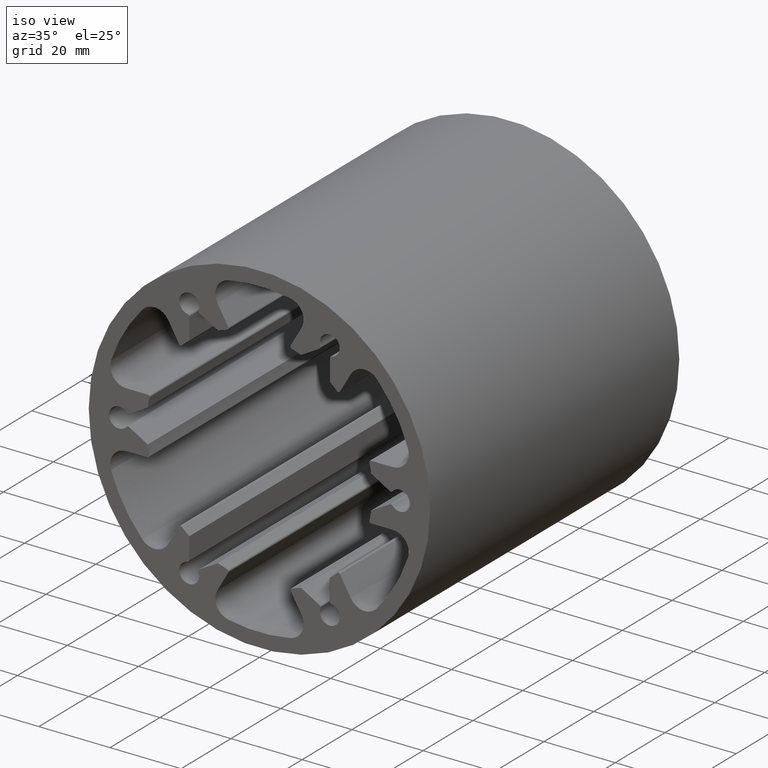
[diagram: clean part render]
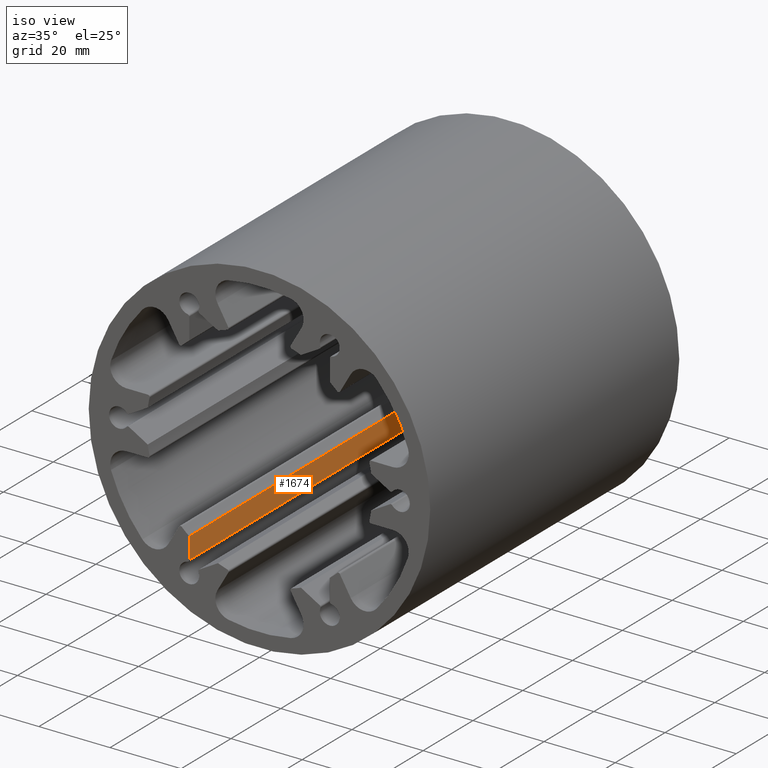
[diagram: same view with one face highlighted and labeled with its STEP entity id]
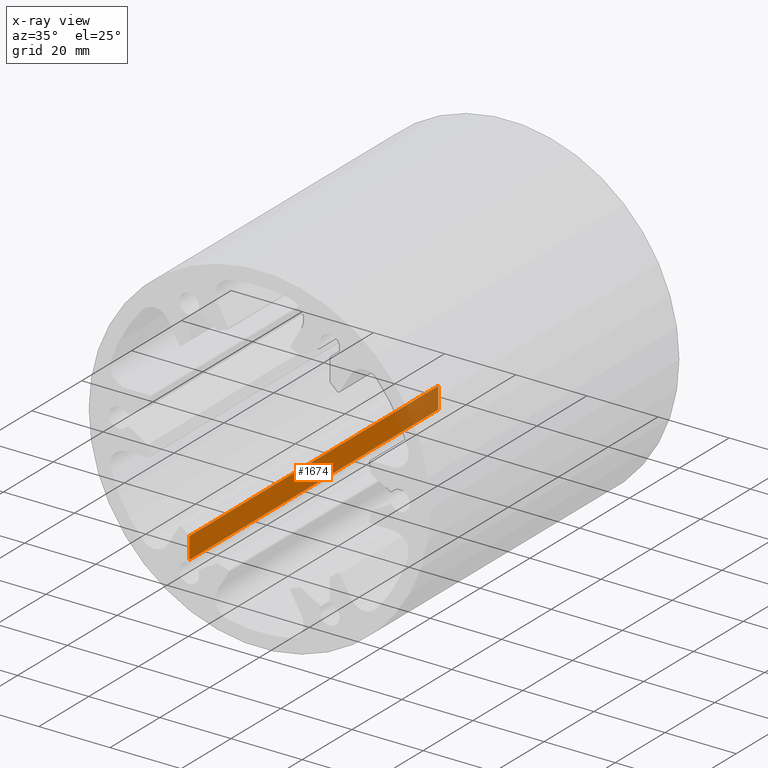
[diagram: x-ray of the same camera — body ghosted, the highlighted face saturated]
A machine part, iso view. The second image highlights one B-rep face of the part: STEP entity #1674.
The next image is the same camera in x-ray: the body ghosted, the highlighted face saturated — about 16% of this face is hidden behind the body in this view.
In plain terms, the highlighted planar face has unit normal (-1, 0, 0).
Its self-contained STEP definition (entity closure, byte-faithful):
#37=PLANE('',#1886);
#114=FACE_OUTER_BOUND('',#201,.T.);
#201=EDGE_LOOP('',(#1316,#1317,#1318,#1319));
#330=LINE('',#2903,#463);
#331=LINE('',#2907,#464);
#332=LINE('',#2909,#465);
#333=LINE('',#2910,#466);
#463=VECTOR('',#2379,10.);
#464=VECTOR('',#2384,10.);
#465=VECTOR('',#2385,10.);
#466=VECTOR('',#2386,10.);
#749=VERTEX_POINT('',#2900);
#750=VERTEX_POINT('',#2902);
#751=VERTEX_POINT('',#2906);
#752=VERTEX_POINT('',#2908);
#989=EDGE_CURVE('',#749,#750,#330,.T.);
#991=EDGE_CURVE('',#751,#749,#331,.T.);
#992=EDGE_CURVE('',#751,#752,#332,.T.);
#993=EDGE_CURVE('',#750,#752,#333,.T.);
#1316=ORIENTED_EDGE('',*,*,#991,.F.);
#1317=ORIENTED_EDGE('',*,*,#992,.T.);
#1318=ORIENTED_EDGE('',*,*,#993,.F.);
#1319=ORIENTED_EDGE('',*,*,#989,.F.);
#1674=ADVANCED_FACE('',(#114),#37,.F.);
#1886=AXIS2_PLACEMENT_3D('',#2905,#2382,#2383);
#2379=DIRECTION('',(0.,1.,0.));
#2382=DIRECTION('center_axis',(-1.,0.,7.58815498861356E-14));
#2383=DIRECTION('ref_axis',(7.58815498861356E-14,0.,1.));
#2384=DIRECTION('',(7.58815498861356E-14,0.,1.));
#2385=DIRECTION('',(0.,1.,0.));
#2386=DIRECTION('',(-7.58815498861356E-14,0.,-1.));
#2900=CARTESIAN_POINT('',(-19.7500000000026,0.,-24.8596057893101));
#2902=CARTESIAN_POINT('',(-19.7500000000026,100.,-24.8596057893101));
#2903=CARTESIAN_POINT('',(-19.7500000000026,0.,-24.8596057893101));
#2905=CARTESIAN_POINT('Origin',(-19.7500000000031,0.,-30.9461021634234));
#2906=CARTESIAN_POINT('',(-19.7500000000031,0.,-30.9461021634234));
#2907=CARTESIAN_POINT('',(-19.7500000000019,0.,-15.4730510817111));
#2908=CARTESIAN_POINT('',(-19.7500000000031,100.,-30.9461021634234));
#2909=CARTESIAN_POINT('',(-19.7500000000031,0.,-30.9461021634234));
#2910=CARTESIAN_POINT('',(-19.7500000000019,100.,-15.4730510817111));